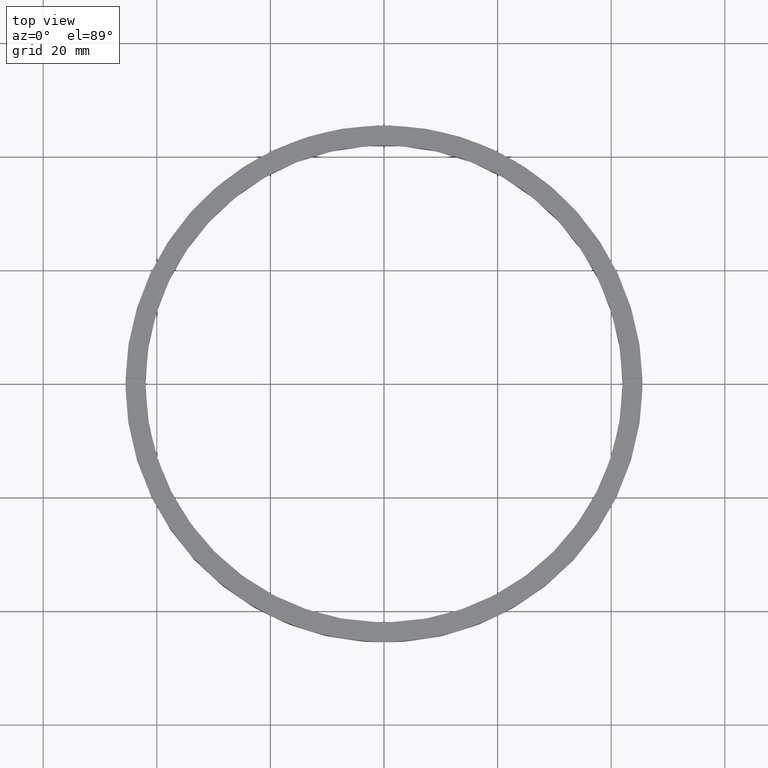
[diagram: clean part render]
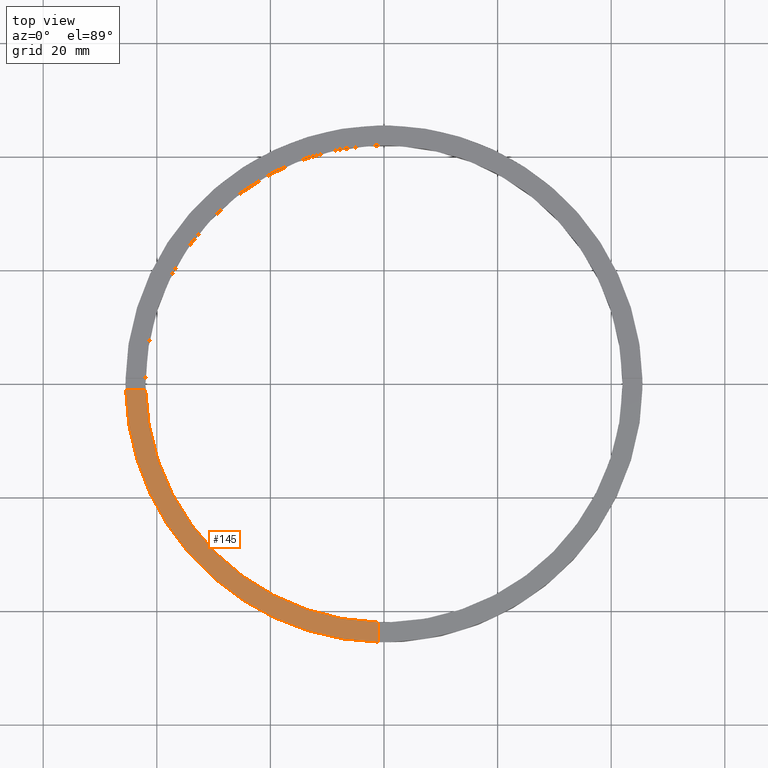
[diagram: same view with one face highlighted and labeled with its STEP entity id]
A machine part, top view. The second image highlights one B-rep face of the part: STEP entity #145.
In plain terms, the highlighted planar face has unit normal (0, 0, 1).
Its self-contained STEP definition (entity closure, byte-faithful):
#12 = EDGE_CURVE ( 'NONE', #732, #462, #509, .T. ) ;
#23 = CARTESIAN_POINT ( 'NONE',  ( -1.000000000000157874, -45.48900966167541782, 4.500000000000000000 ) ) ;
#64 = DIRECTION ( 'NONE',  ( 1.301042606982605074E-16, -1.000000000000000000, 0.000000000000000000 ) ) ;
#67 = CARTESIAN_POINT ( 'NONE',  ( 0.000000000000000000, 0.000000000000000000, 4.500000000000000000 ) ) ;
#68 = CARTESIAN_POINT ( 'NONE',  ( -1.000000000000159206, -35.50000000000017764, 4.500000000000000000 ) ) ;
#71 = PLANE ( 'NONE',  #225 ) ;
#86 = AXIS2_PLACEMENT_3D ( 'NONE', #357, #120, #742 ) ;
#117 = CIRCLE ( 'NONE', #553, 45.50000000000000000 ) ;
#119 = CARTESIAN_POINT ( 'NONE',  ( -35.50000000000018474, -1.000000000000027978, 4.500000000000000000 ) ) ;
#120 = DIRECTION ( 'NONE',  ( 0.000000000000000000, 0.000000000000000000, 1.000000000000000000 ) ) ;
#123 = DIRECTION ( 'NONE',  ( 0.000000000000000000, 0.000000000000000000, 1.000000000000000000 ) ) ;
#131 = DIRECTION ( 'NONE',  ( 0.000000000000000000, 0.000000000000000000, 1.000000000000000000 ) ) ;
#145 = ADVANCED_FACE ( 'NONE', ( #352 ), #71, .T. ) ;
#150 = ORIENTED_EDGE ( 'NONE', *, *, #640, .T. ) ;
#173 = DIRECTION ( 'NONE',  ( 1.000000000000000000, 2.168404344971008621E-16, -0.000000000000000000 ) ) ;
#174 = VERTEX_POINT ( 'NONE', #23 ) ;
#193 = EDGE_CURVE ( 'NONE', #462, #723, #358, .T. ) ;
#206 = CARTESIAN_POINT ( 'NONE',  ( -45.48900966167541782, -1.000000000000029976, 4.500000000000000000 ) ) ;
#225 = AXIS2_PLACEMENT_3D ( 'NONE', #67, #123, #535 ) ;
#250 = VECTOR ( 'NONE', #173, 1000.000000000000000 ) ;
#253 = CARTESIAN_POINT ( 'NONE',  ( -41.98809355043403713, -1.000000000000029310, 4.500000000000000000 ) ) ;
#314 = LINE ( 'NONE', #68, #316 ) ;
#316 = VECTOR ( 'NONE', #64, 1000.000000000000000 ) ;
#352 = FACE_OUTER_BOUND ( 'NONE', #416, .T. ) ;
#357 = CARTESIAN_POINT ( 'NONE',  ( 0.000000000000000000, 0.000000000000000000, 4.500000000000000000 ) ) ;
#358 = CIRCLE ( 'NONE', #86, 42.00000000000000000 ) ;
#377 = DIRECTION ( 'NONE',  ( 1.000000000000000000, 0.000000000000000000, 0.000000000000000000 ) ) ;
#416 = EDGE_LOOP ( 'NONE', ( #518, #706, #479, #150 ) ) ;
#462 = VERTEX_POINT ( 'NONE', #253 ) ;
#467 = EDGE_CURVE ( 'NONE', #723, #174, #314, .T. ) ;
#479 = ORIENTED_EDGE ( 'NONE', *, *, #12, .F. ) ;
#509 = LINE ( 'NONE', #119, #250 ) ;
#518 = ORIENTED_EDGE ( 'NONE', *, *, #467, .F. ) ;
#535 = DIRECTION ( 'NONE',  ( 1.000000000000000000, 0.000000000000000000, -0.000000000000000000 ) ) ;
#537 = CARTESIAN_POINT ( 'NONE',  ( 0.000000000000000000, 0.000000000000000000, 4.500000000000000000 ) ) ;
#553 = AXIS2_PLACEMENT_3D ( 'NONE', #537, #131, #377 ) ;
#627 = CARTESIAN_POINT ( 'NONE',  ( -1.000000000000158318, -41.98809355043403002, 4.500000000000000000 ) ) ;
#640 = EDGE_CURVE ( 'NONE', #732, #174, #117, .T. ) ;
#706 = ORIENTED_EDGE ( 'NONE', *, *, #193, .F. ) ;
#723 = VERTEX_POINT ( 'NONE', #627 ) ;
#732 = VERTEX_POINT ( 'NONE', #206 ) ;
#742 = DIRECTION ( 'NONE',  ( 1.000000000000000000, 0.000000000000000000, 0.000000000000000000 ) ) ;